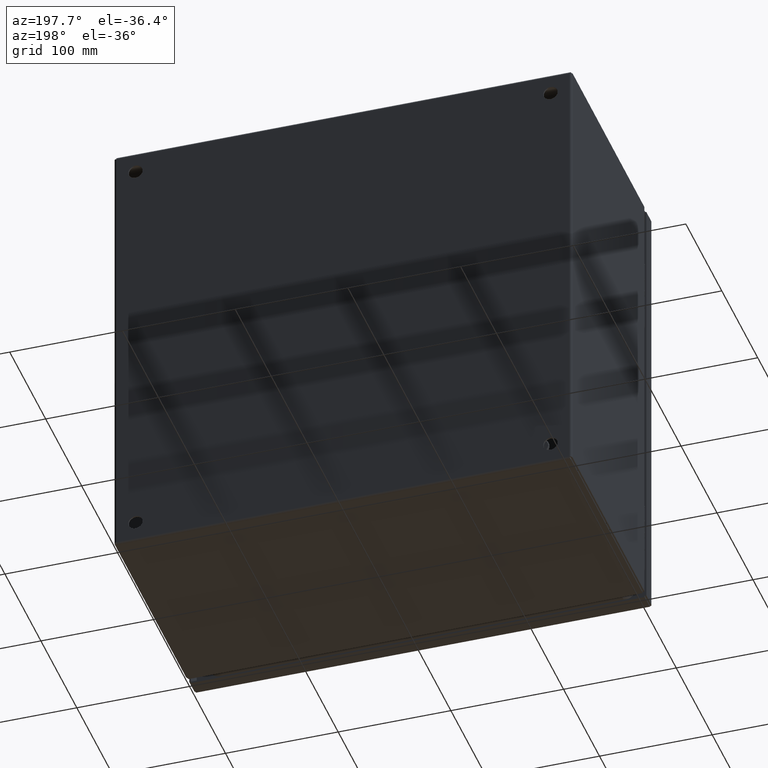
[diagram: clean part render]
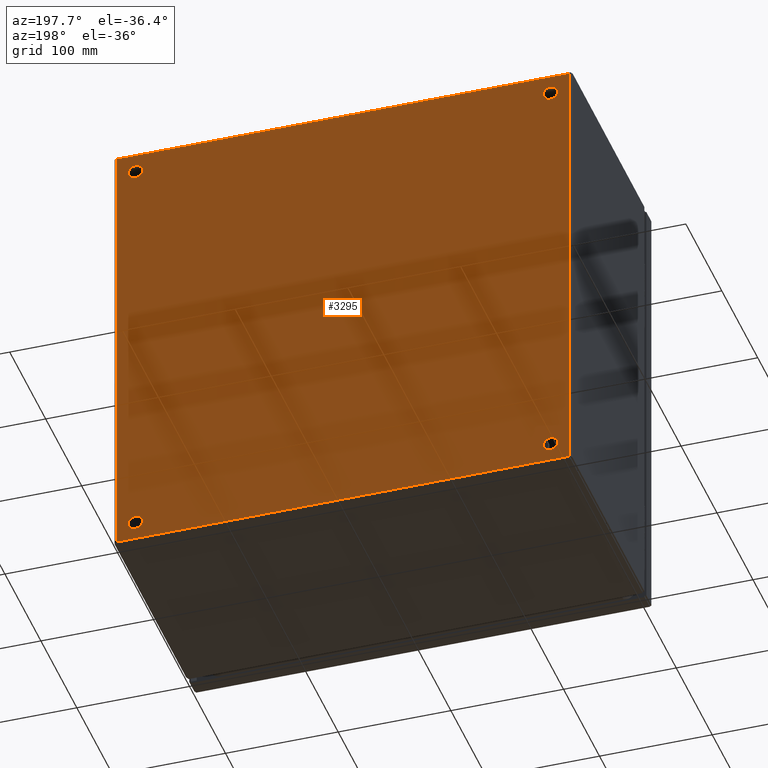
[diagram: same view with one face highlighted and labeled with its STEP entity id]
A machine part, auxiliary view. The second image highlights one B-rep face of the part: STEP entity #3295.
In plain terms, the highlighted planar face has unit normal (0, -1, 0).
Its self-contained STEP definition (entity closure, byte-faithful):
#430 = AXIS2_PLACEMENT_3D ( 'NONE', #2764, #6201, #19871 ) ;
#491 = VERTEX_POINT ( 'NONE', #3904 ) ;
#628 = CARTESIAN_POINT ( 'NONE',  ( -7.942999999999999616, 0.0000000000000000000, -7.914000000000000590 ) ) ;
#686 = DIRECTION ( 'NONE',  ( 0.0000000000000000000, 0.0000000000000000000, 1.000000000000000000 ) ) ;
#783 = VERTEX_POINT ( 'NONE', #11191 ) ;
#1080 = EDGE_CURVE ( 'NONE', #783, #3881, #4486, .T. ) ;
#1146 = ORIENTED_EDGE ( 'NONE', *, *, #17195, .F. ) ;
#1308 = FACE_BOUND ( 'NONE', #18460, .T. ) ;
#1524 = DIRECTION ( 'NONE',  ( 0.0000000000000000000, -0.0000000000000000000, -1.000000000000000000 ) ) ;
#1782 = EDGE_LOOP ( 'NONE', ( #10173, #7920, #2002, #6625 ) ) ;
#1878 = CARTESIAN_POINT ( 'NONE',  ( -7.250000000000000888, 0.0000000000000000000, -7.250000000000000888 ) ) ;
#2002 = ORIENTED_EDGE ( 'NONE', *, *, #14935, .F. ) ;
#2337 = LINE ( 'NONE', #9089, #21077 ) ;
#2423 = DIRECTION ( 'NONE',  ( 0.0000000000000000000, 0.0000000000000000000, 1.000000000000000000 ) ) ;
#2439 = DIRECTION ( 'NONE',  ( -0.0000000000000000000, 0.0000000000000000000, 1.000000000000000000 ) ) ;
#2444 = EDGE_LOOP ( 'NONE', ( #21323, #1146 ) ) ;
#2501 = CARTESIAN_POINT ( 'NONE',  ( 7.250000000000000888, 0.0000000000000000000, 7.500000000000000000 ) ) ;
#2764 = CARTESIAN_POINT ( 'NONE',  ( 7.250000000000000888, 0.0000000000000000000, 7.250000000000000888 ) ) ;
#2964 = VECTOR ( 'NONE', #2439, 39.37007874015748143 ) ;
#2987 = ORIENTED_EDGE ( 'NONE', *, *, #21123, .F. ) ;
#2993 = VERTEX_POINT ( 'NONE', #3002 ) ;
#3002 = CARTESIAN_POINT ( 'NONE',  ( -7.914000000000000590, 0.0000000000000000000, -7.914000000000000590 ) ) ;
#3206 = VECTOR ( 'NONE', #20633, 39.37007874015748143 ) ;
#3233 = VERTEX_POINT ( 'NONE', #18297 ) ;
#3295 = ADVANCED_FACE ( 'NONE', ( #9822, #13297, #1308, #18518, #9617 ), #10065, .F. ) ;
#3433 = DIRECTION ( 'NONE',  ( 0.0000000000000000000, 0.0000000000000000000, 1.000000000000000000 ) ) ;
#3494 = DIRECTION ( 'NONE',  ( -1.000000000000000000, -0.0000000000000000000, -0.0000000000000000000 ) ) ;
#3504 = CARTESIAN_POINT ( 'NONE',  ( 7.250000000000000888, 0.0000000000000000000, -7.500000000000000000 ) ) ;
#3852 = EDGE_CURVE ( 'NONE', #2993, #3233, #19182, .T. ) ;
#3881 = VERTEX_POINT ( 'NONE', #3504 ) ;
#3904 = CARTESIAN_POINT ( 'NONE',  ( -7.914000000000000590, 0.0000000000000000000, 7.914000000000000590 ) ) ;
#4102 = DIRECTION ( 'NONE',  ( 0.0000000000000000000, 1.000000000000000000, 0.0000000000000000000 ) ) ;
#4114 = DIRECTION ( 'NONE',  ( 0.0000000000000000000, -0.0000000000000000000, -1.000000000000000000 ) ) ;
#4133 = CARTESIAN_POINT ( 'NONE',  ( -7.250000000000000888, 0.0000000000000000000, 7.250000000000000888 ) ) ;
#4441 = VERTEX_POINT ( 'NONE', #4893 ) ;
#4486 = CIRCLE ( 'NONE', #12986, 0.2499999999999998057 ) ;
#4726 = AXIS2_PLACEMENT_3D ( 'NONE', #17515, #5399, #8819 ) ;
#4893 = CARTESIAN_POINT ( 'NONE',  ( -7.250000000000000888, 0.0000000000000000000, -7.500000000000000000 ) ) ;
#4947 = CARTESIAN_POINT ( 'NONE',  ( -7.250000000000000888, 0.0000000000000000000, 7.000000000000000888 ) ) ;
#5399 = DIRECTION ( 'NONE',  ( 0.0000000000000000000, 1.000000000000000000, 0.0000000000000000000 ) ) ;
#5548 = LINE ( 'NONE', #5768, #2964 ) ;
#5756 = CARTESIAN_POINT ( 'NONE',  ( -7.250000000000000888, 0.0000000000000000000, -7.250000000000000888 ) ) ;
#5768 = CARTESIAN_POINT ( 'NONE',  ( 7.914000000000000590, 0.0000000000000000000, -7.942999999999999616 ) ) ;
#6126 = AXIS2_PLACEMENT_3D ( 'NONE', #4133, #14023, #686 ) ;
#6201 = DIRECTION ( 'NONE',  ( 0.0000000000000000000, 1.000000000000000000, 0.0000000000000000000 ) ) ;
#6625 = ORIENTED_EDGE ( 'NONE', *, *, #12030, .F. ) ;
#6822 = CIRCLE ( 'NONE', #14296, 0.2499999999999998057 ) ;
#7077 = DIRECTION ( 'NONE',  ( 0.0000000000000000000, 1.000000000000000000, 0.0000000000000000000 ) ) ;
#7240 = ORIENTED_EDGE ( 'NONE', *, *, #18715, .F. ) ;
#7413 = ORIENTED_EDGE ( 'NONE', *, *, #14726, .F. ) ;
#7478 = CIRCLE ( 'NONE', #14221, 0.2499999999999998057 ) ;
#7614 = DIRECTION ( 'NONE',  ( 0.0000000000000000000, 0.0000000000000000000, 1.000000000000000000 ) ) ;
#7920 = ORIENTED_EDGE ( 'NONE', *, *, #12073, .F. ) ;
#7927 = DIRECTION ( 'NONE',  ( 0.0000000000000000000, 1.000000000000000000, 0.0000000000000000000 ) ) ;
#8016 = EDGE_LOOP ( 'NONE', ( #16252, #2987 ) ) ;
#8340 = VERTEX_POINT ( 'NONE', #13270 ) ;
#8439 = ORIENTED_EDGE ( 'NONE', *, *, #10616, .F. ) ;
#8540 = CIRCLE ( 'NONE', #430, 0.2499999999999998057 ) ;
#8819 = DIRECTION ( 'NONE',  ( 0.0000000000000000000, 0.0000000000000000000, 1.000000000000000000 ) ) ;
#8832 = EDGE_CURVE ( 'NONE', #17373, #8340, #8958, .T. ) ;
#8958 = CIRCLE ( 'NONE', #18178, 0.2499999999999998057 ) ;
#9089 = CARTESIAN_POINT ( 'NONE',  ( -7.914000000000000590, 0.0000000000000000000, -7.942999999999999616 ) ) ;
#9617 = FACE_BOUND ( 'NONE', #2444, .T. ) ;
#9822 = FACE_BOUND ( 'NONE', #8016, .T. ) ;
#10065 = PLANE ( 'NONE',  #13600 ) ;
#10154 = CARTESIAN_POINT ( 'NONE',  ( -7.250000000000000888, 0.0000000000000000000, -7.000000000000000888 ) ) ;
#10173 = ORIENTED_EDGE ( 'NONE', *, *, #3852, .F. ) ;
#10616 = EDGE_CURVE ( 'NONE', #19375, #12001, #14289, .T. ) ;
#11191 = CARTESIAN_POINT ( 'NONE',  ( 7.250000000000000888, 0.0000000000000000000, -7.000000000000000888 ) ) ;
#11875 = CARTESIAN_POINT ( 'NONE',  ( 7.250000000000000888, 0.0000000000000000000, 7.250000000000000888 ) ) ;
#12001 = VERTEX_POINT ( 'NONE', #14102 ) ;
#12030 = EDGE_CURVE ( 'NONE', #3233, #21213, #5548, .T. ) ;
#12073 = EDGE_CURVE ( 'NONE', #491, #2993, #2337, .T. ) ;
#12834 = DIRECTION ( 'NONE',  ( 0.0000000000000000000, 0.0000000000000000000, 1.000000000000000000 ) ) ;
#12953 = CARTESIAN_POINT ( 'NONE',  ( -7.250000000000000888, 0.0000000000000000000, 7.250000000000000888 ) ) ;
#12986 = AXIS2_PLACEMENT_3D ( 'NONE', #14605, #7927, #12834 ) ;
#13270 = CARTESIAN_POINT ( 'NONE',  ( 7.250000000000000888, 0.0000000000000000000, 7.000000000000000888 ) ) ;
#13297 = FACE_OUTER_BOUND ( 'NONE', #1782, .T. ) ;
#13528 = DIRECTION ( 'NONE',  ( 0.0000000000000000000, 0.0000000000000000000, 1.000000000000000000 ) ) ;
#13600 = AXIS2_PLACEMENT_3D ( 'NONE', #21946, #16605, #1524 ) ;
#13809 = ORIENTED_EDGE ( 'NONE', *, *, #1080, .F. ) ;
#14023 = DIRECTION ( 'NONE',  ( 0.0000000000000000000, 1.000000000000000000, 0.0000000000000000000 ) ) ;
#14102 = CARTESIAN_POINT ( 'NONE',  ( -7.250000000000000888, 0.0000000000000000000, 7.500000000000000000 ) ) ;
#14221 = AXIS2_PLACEMENT_3D ( 'NONE', #12953, #19740, #7614 ) ;
#14289 = CIRCLE ( 'NONE', #6126, 0.2499999999999998057 ) ;
#14296 = AXIS2_PLACEMENT_3D ( 'NONE', #1878, #21858, #13528 ) ;
#14605 = CARTESIAN_POINT ( 'NONE',  ( 7.250000000000000888, 0.0000000000000000000, -7.250000000000000888 ) ) ;
#14726 = EDGE_CURVE ( 'NONE', #12001, #19375, #7478, .T. ) ;
#14935 = EDGE_CURVE ( 'NONE', #21213, #491, #19169, .T. ) ;
#15699 = AXIS2_PLACEMENT_3D ( 'NONE', #5756, #4102, #2423 ) ;
#16252 = ORIENTED_EDGE ( 'NONE', *, *, #20892, .F. ) ;
#16605 = DIRECTION ( 'NONE',  ( 0.0000000000000000000, -1.000000000000000000, 0.0000000000000000000 ) ) ;
#16614 = EDGE_LOOP ( 'NONE', ( #13809, #7240 ) ) ;
#16760 = CIRCLE ( 'NONE', #15699, 0.2499999999999998057 ) ;
#17195 = EDGE_CURVE ( 'NONE', #8340, #17373, #8540, .T. ) ;
#17373 = VERTEX_POINT ( 'NONE', #2501 ) ;
#17499 = CIRCLE ( 'NONE', #4726, 0.2499999999999998057 ) ;
#17515 = CARTESIAN_POINT ( 'NONE',  ( 7.250000000000000888, 0.0000000000000000000, -7.250000000000000888 ) ) ;
#17957 = CARTESIAN_POINT ( 'NONE',  ( 7.914000000000000590, -5.272618591085178293E-16, 7.914000000000000590 ) ) ;
#18178 = AXIS2_PLACEMENT_3D ( 'NONE', #11875, #7077, #3433 ) ;
#18297 = CARTESIAN_POINT ( 'NONE',  ( 7.914000000000000590, -5.272618591085178293E-16, -7.914000000000000590 ) ) ;
#18460 = EDGE_LOOP ( 'NONE', ( #7413, #8439 ) ) ;
#18518 = FACE_BOUND ( 'NONE', #16614, .T. ) ;
#18715 = EDGE_CURVE ( 'NONE', #3881, #783, #17499, .T. ) ;
#19169 = LINE ( 'NONE', #20614, #20980 ) ;
#19182 = LINE ( 'NONE', #628, #3206 ) ;
#19375 = VERTEX_POINT ( 'NONE', #4947 ) ;
#19740 = DIRECTION ( 'NONE',  ( 0.0000000000000000000, 1.000000000000000000, 0.0000000000000000000 ) ) ;
#19871 = DIRECTION ( 'NONE',  ( 0.0000000000000000000, 0.0000000000000000000, 1.000000000000000000 ) ) ;
#20098 = VERTEX_POINT ( 'NONE', #10154 ) ;
#20614 = CARTESIAN_POINT ( 'NONE',  ( -7.942999999999999616, 0.0000000000000000000, 7.914000000000000590 ) ) ;
#20633 = DIRECTION ( 'NONE',  ( 1.000000000000000000, 0.0000000000000000000, 0.0000000000000000000 ) ) ;
#20892 = EDGE_CURVE ( 'NONE', #20098, #4441, #6822, .T. ) ;
#20980 = VECTOR ( 'NONE', #3494, 39.37007874015748143 ) ;
#21077 = VECTOR ( 'NONE', #4114, 39.37007874015748143 ) ;
#21123 = EDGE_CURVE ( 'NONE', #4441, #20098, #16760, .T. ) ;
#21213 = VERTEX_POINT ( 'NONE', #17957 ) ;
#21323 = ORIENTED_EDGE ( 'NONE', *, *, #8832, .F. ) ;
#21858 = DIRECTION ( 'NONE',  ( 0.0000000000000000000, 1.000000000000000000, 0.0000000000000000000 ) ) ;
#21946 = CARTESIAN_POINT ( 'NONE',  ( -7.942999999999999616, 0.0000000000000000000, -7.942999999999999616 ) ) ;